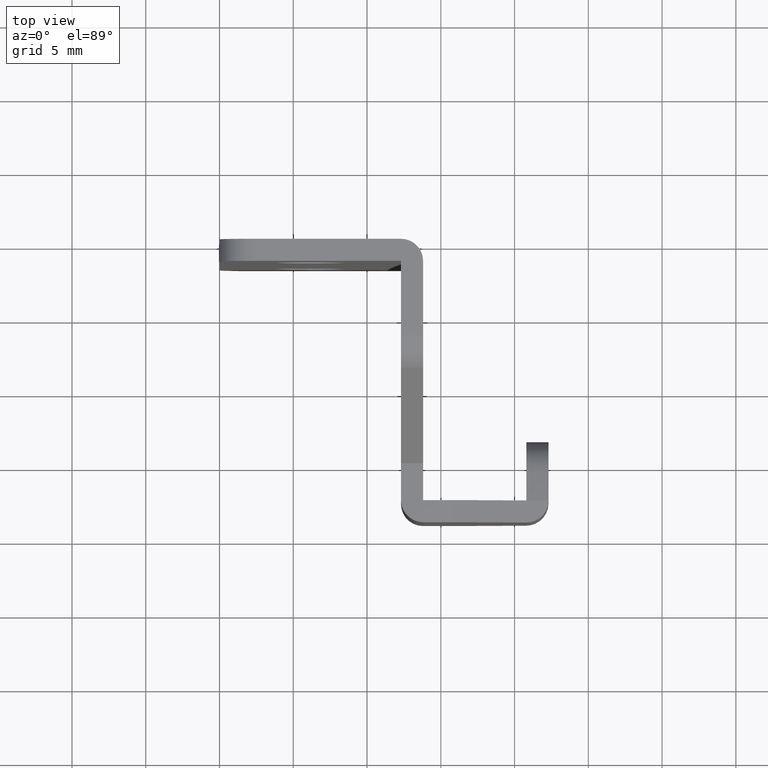
[diagram: clean part render]
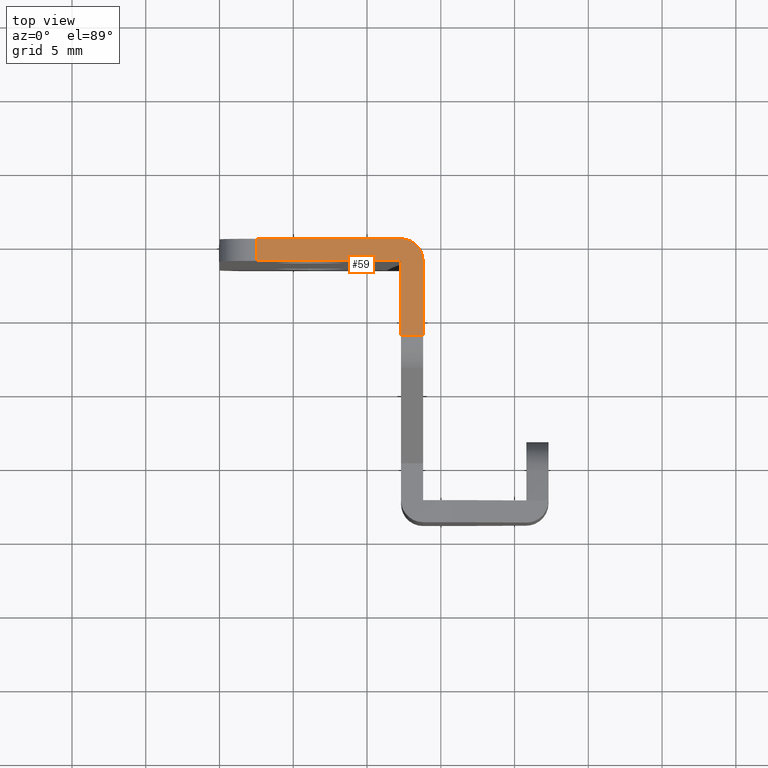
[diagram: same view with one face highlighted and labeled with its STEP entity id]
A machine part, top view. The second image highlights one B-rep face of the part: STEP entity #59.
In plain terms, the highlighted planar face has unit normal (0, 0, -1).
Its self-contained STEP definition (entity closure, byte-faithful):
#59=ADVANCED_FACE('',(#268),#267,.F.);
#267=PLANE('',#517);
#268=FACE_OUTER_BOUND('',#518,.T.);
#514=CARTESIAN_POINT('',(1.49299868000E+01,-7.18820345248E+00,2.00000000000E+01));
#515=DIRECTION('',(0.00000000000E+00,0.00000000000E+00,-1.00000000000E+00));
#516=DIRECTION('',(-1.00000000000E+00,0.00000000000E+00,0.00000000000E+00));
#517=AXIS2_PLACEMENT_3D('',#514,#515,#516);
#518=EDGE_LOOP('',(#701,#702,#703,#704,#705,#706,#707));
#701=ORIENTED_EDGE('',*,*,#844,.T.);
#702=ORIENTED_EDGE('',*,*,#788,.T.);
#703=ORIENTED_EDGE('',*,*,#839,.F.);
#704=ORIENTED_EDGE('',*,*,#831,.T.);
#705=ORIENTED_EDGE('',*,*,#779,.T.);
#706=ORIENTED_EDGE('',*,*,#818,.F.);
#707=ORIENTED_EDGE('',*,*,#845,.T.);
#779=EDGE_CURVE('',#923,#915,#924,.T.);
#788=EDGE_CURVE('',#985,#986,#987,.T.);
#818=EDGE_CURVE('',#1182,#915,#1189,.T.);
#831=EDGE_CURVE('',#1273,#923,#1274,.T.);
#839=EDGE_CURVE('',#1273,#986,#1324,.T.);
#844=EDGE_CURVE('',#1358,#985,#1359,.T.);
#845=EDGE_CURVE('',#1182,#1358,#1365,.T.);
#915=VERTEX_POINT('',#1515);
#923=VERTEX_POINT('',#1520);
#924=LINE('',#1521,#1522);
#985=VERTEX_POINT('',#1561);
#986=VERTEX_POINT('',#1562);
#987=CIRCLE('',#1566,1.50000000000E+00);
#1182=VERTEX_POINT('',#1693);
#1189=LINE('',#1698,#1699);
#1273=VERTEX_POINT('',#1746);
#1274=LINE('',#1747,#1748);
#1324=LINE('',#1775,#1776);
#1358=VERTEX_POINT('',#1798);
#1359=LINE('',#1799,#1800);
#1365=LINE('',#1802,#1803);
#1515=CARTESIAN_POINT('',(1.22999880000E+01,-1.50000000000E+00,2.00000000000E+01));
#1520=CARTESIAN_POINT('',(2.50000000000E+00,-1.50000000000E+00,2.00000000000E+01));
#1521=CARTESIAN_POINT('',(2.50000000000E+00,-1.50000000000E+00,2.00000000000E+01));
#1522=VECTOR('',#1523,9.79998800000E+00);
#1523=DIRECTION('',(1.00000000000E+00,0.00000000000E+00,0.00000000000E+00));
#1561=CARTESIAN_POINT('',(1.37999880000E+01,-1.50000000000E+00,2.00000000000E+01));
#1562=CARTESIAN_POINT('',(1.22999880000E+01,0.00000000000E+00,2.00000000000E+01));
#1563=CARTESIAN_POINT('',(1.22999880000E+01,-1.50000000000E+00,2.00000000000E+01));
#1564=DIRECTION('',(0.00000000000E+00,-0.00000000000E+00,1.00000000000E+00));
#1565=DIRECTION('',(1.00000000000E+00,-0.00000000000E+00,-0.00000000000E+00));
#1566=AXIS2_PLACEMENT_3D('',#1563,#1564,#1565);
#1693=CARTESIAN_POINT('',(1.22999880000E+01,-6.53473041134E+00,2.00000000000E+01));
#1698=CARTESIAN_POINT('',(1.22999880000E+01,-6.53473041134E+00,2.00000000000E+01));
#1699=VECTOR('',#1700,5.03473041134E+00);
#1700=DIRECTION('',(0.00000000000E+00,1.00000000000E+00,0.00000000000E+00));
#1746=CARTESIAN_POINT('',(2.50000000000E+00,0.00000000000E+00,2.00000000000E+01));
#1747=CARTESIAN_POINT('',(2.50000000000E+00,0.00000000000E+00,2.00000000000E+01));
#1748=VECTOR('',#1749,1.50000000000E+00);
#1749=DIRECTION('',(0.00000000000E+00,-1.00000000000E+00,0.00000000000E+00));
#1775=CARTESIAN_POINT('',(2.50000000000E+00,0.00000000000E+00,2.00000000000E+01));
#1776=VECTOR('',#1777,9.79998800000E+00);
#1777=DIRECTION('',(1.00000000000E+00,0.00000000000E+00,0.00000000000E+00));
#1798=CARTESIAN_POINT('',(1.37999880000E+01,-6.53473041134E+00,2.00000000000E+01));
#1799=CARTESIAN_POINT('',(1.37999880000E+01,-6.53473041134E+00,2.00000000000E+01));
#1800=VECTOR('',#1801,5.03473041134E+00);
#1801=DIRECTION('',(0.00000000000E+00,1.00000000000E+00,0.00000000000E+00));
#1802=CARTESIAN_POINT('',(1.22999880000E+01,-6.53473041134E+00,2.00000000000E+01));
#1803=VECTOR('',#1804,1.50000000000E+00);
#1804=DIRECTION('',(1.00000000000E+00,0.00000000000E+00,0.00000000000E+00));